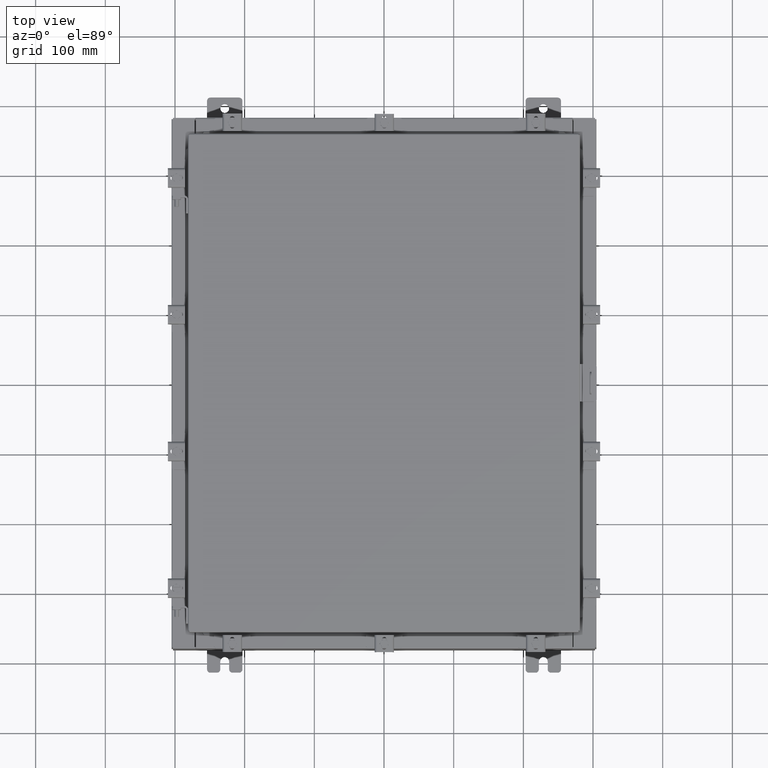
[diagram: clean part render]
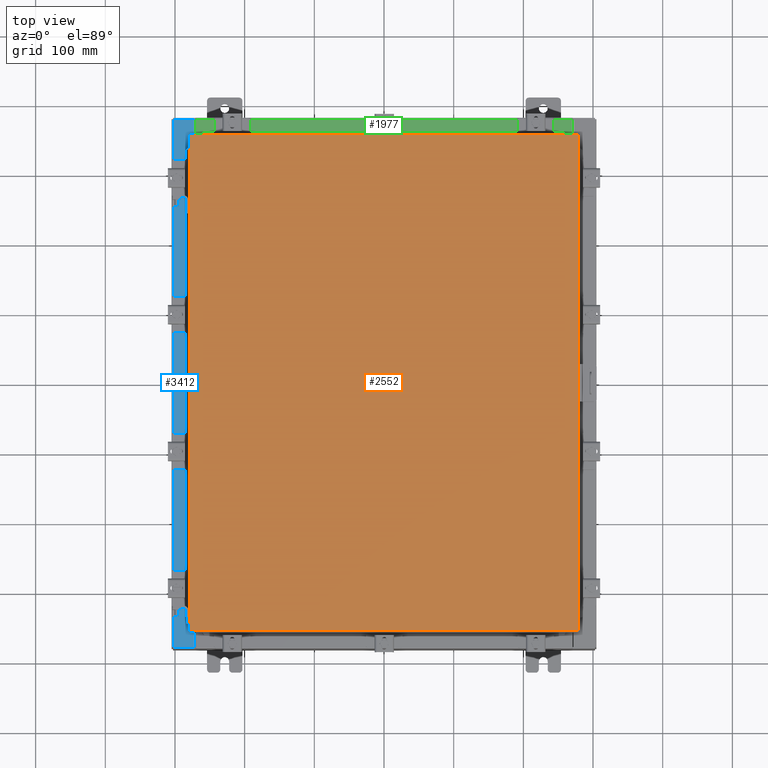
[diagram: same view with three faces highlighted in distinct colors, each labeled with its STEP entity id]
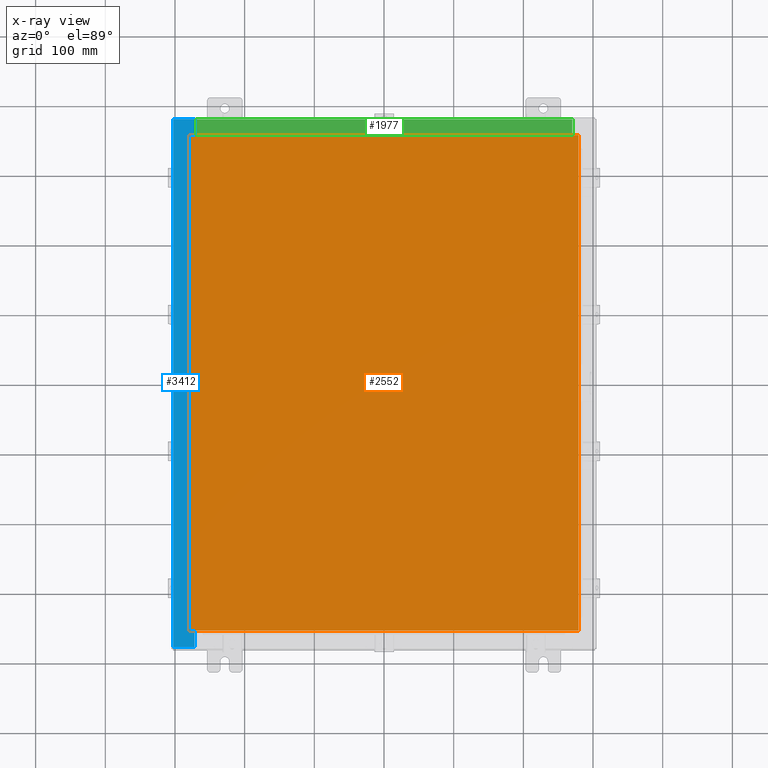
[diagram: x-ray of the same camera — body ghosted, the three highlighted faces saturated]
A machine part, top view with three faces highlighted in distinct colors.
The next image is the same camera in x-ray (body ghosted, the three faces saturated) — at least one of them is partly hidden behind the body in this view.
Their STEP definitions:

[orange] entity #2552 — the highlighted planar face has unit normal (0, 0, -1).
#576 = EDGE_CURVE ( 'NONE', #13573, #22359, #11589, .T. ) ;
#1017 = CARTESIAN_POINT ( 'NONE',  ( -10.99030000000000000, 14.00630000000000100, -2.048885995248197400E-016 ) ) ;
#1202 = ORIENTED_EDGE ( 'NONE', *, *, #6869, .T. ) ;
#2110 = VECTOR ( 'NONE', #15304, 39.37007874015748100 ) ;
#2126 = ORIENTED_EDGE ( 'NONE', *, *, #576, .T. ) ;
#2151 = CARTESIAN_POINT ( 'NONE',  ( -10.99029999999999600, -14.00629999999999800, -2.219626494852214000E-016 ) ) ;
#2207 = AXIS2_PLACEMENT_3D ( 'NONE', #19482, #23092, #12356 ) ;
#2552 = ADVANCED_FACE ( 'NONE', ( #19470 ), #12295, .F. ) ;
#3680 = CARTESIAN_POINT ( 'NONE',  ( 10.99030000000000000, -14.00629999999999800, -2.048885995248197400E-016 ) ) ;
#3942 = DIRECTION ( 'NONE',  ( 1.000000000000000000, -0.0000000000000000000, -0.0000000000000000000 ) ) ;
#4353 = CARTESIAN_POINT ( 'NONE',  ( -10.99029999999999800, -14.00629999999999800, -2.048885995248197400E-016 ) ) ;
#5461 = DIRECTION ( 'NONE',  ( 0.0000000000000000000, 1.000000000000000000, 0.0000000000000000000 ) ) ;
#5851 = VERTEX_POINT ( 'NONE', #18045 ) ;
#6288 = CARTESIAN_POINT ( 'NONE',  ( 10.99030000000000000, 14.00629999999999800, -2.048885995248197400E-016 ) ) ;
#6869 = EDGE_CURVE ( 'NONE', #22359, #5851, #8868, .T. ) ;
#8314 = VECTOR ( 'NONE', #3942, 39.37007874015748100 ) ;
#8868 = LINE ( 'NONE', #2151, #8314 ) ;
#8894 = LINE ( 'NONE', #6288, #11967 ) ;
#9820 = EDGE_LOOP ( 'NONE', ( #1202, #13377, #19326, #2126 ) ) ;
#11589 = LINE ( 'NONE', #1017, #2110 ) ;
#11967 = VECTOR ( 'NONE', #16988, 39.37007874015748100 ) ;
#12295 = PLANE ( 'NONE',  #2207 ) ;
#12343 = VECTOR ( 'NONE', #5461, 39.37007874015748100 ) ;
#12356 = DIRECTION ( 'NONE',  ( -1.000000000000000000, 0.0000000000000000000, -0.0000000000000000000 ) ) ;
#12913 = LINE ( 'NONE', #3680, #12343 ) ;
#13377 = ORIENTED_EDGE ( 'NONE', *, *, #20481, .T. ) ;
#13573 = VERTEX_POINT ( 'NONE', #19896 ) ;
#14234 = VERTEX_POINT ( 'NONE', #21594 ) ;
#14759 = EDGE_CURVE ( 'NONE', #14234, #13573, #8894, .T. ) ;
#15304 = DIRECTION ( 'NONE',  ( 0.0000000000000000000, -1.000000000000000000, 0.0000000000000000000 ) ) ;
#16988 = DIRECTION ( 'NONE',  ( -1.000000000000000000, -0.0000000000000000000, -0.0000000000000000000 ) ) ;
#18045 = CARTESIAN_POINT ( 'NONE',  ( 10.99030000000000000, -14.00629999999999800, -2.048885995248197400E-016 ) ) ;
#19326 = ORIENTED_EDGE ( 'NONE', *, *, #14759, .T. ) ;
#19470 = FACE_OUTER_BOUND ( 'NONE', #9820, .T. ) ;
#19482 = CARTESIAN_POINT ( 'NONE',  ( 0.0000000000000000000, 0.0000000000000000000, 0.0000000000000000000 ) ) ;
#19896 = CARTESIAN_POINT ( 'NONE',  ( -10.99030000000000000, 14.00630000000000100, -2.048885995248197400E-016 ) ) ;
#20481 = EDGE_CURVE ( 'NONE', #5851, #14234, #12913, .T. ) ;
#21594 = CARTESIAN_POINT ( 'NONE',  ( 10.99030000000000000, 14.00629999999999800, -2.048885995248197400E-016 ) ) ;
#22359 = VERTEX_POINT ( 'NONE', #4353 ) ;
#23092 = DIRECTION ( 'NONE',  ( 0.0000000000000000000, 0.0000000000000000000, -1.000000000000000000 ) ) ;

[blue] entity #3412 — the highlighted planar face has unit normal (0, 0, -1).
#262 = ORIENTED_EDGE ( 'NONE', *, *, #11784, .F. ) ;
#887 = EDGE_CURVE ( 'NONE', #2629, #20424, #15483, .T. ) ;
#925 = CARTESIAN_POINT ( 'NONE',  ( -10.69970000000002500, 14.92530000000000000, 5.925300000000008000 ) ) ;
#1241 = VECTOR ( 'NONE', #13762, 39.37007874015748100 ) ;
#1353 = CARTESIAN_POINT ( 'NONE',  ( -10.75005000000002500, -13.61242500000000000, 5.925300000000009800 ) ) ;
#1665 = ORIENTED_EDGE ( 'NONE', *, *, #9773, .F. ) ;
#2022 = DIRECTION ( 'NONE',  ( -1.000000000000000000, 0.0000000000000000000, -7.132762385546384700E-015 ) ) ;
#2139 = EDGE_CURVE ( 'NONE', #9069, #7188, #22029, .T. ) ;
#2480 = CARTESIAN_POINT ( 'NONE',  ( -11.91230000000002500, 14.92530000000000000, 5.925299999999999100 ) ) ;
#2629 = VERTEX_POINT ( 'NONE', #10813 ) ;
#2718 = CARTESIAN_POINT ( 'NONE',  ( -10.71270000000002700, -13.59375000000000000, 5.925300000000009800 ) ) ;
#3135 = DIRECTION ( 'NONE',  ( 1.000000000000000000, 0.0000000000000000000, 0.0000000000000000000 ) ) ;
#3412 = ADVANCED_FACE ( 'NONE', ( #9651 ), #17786, .F. ) ;
#3653 = VECTOR ( 'NONE', #6321, 39.37007874015748100 ) ;
#3772 = CARTESIAN_POINT ( 'NONE',  ( -10.69970000000002500, -2.667765658083309700E-030, 5.925300000000008000 ) ) ;
#3835 = VECTOR ( 'NONE', #7851, 39.37007874015748100 ) ;
#3988 = LINE ( 'NONE', #13787, #17668 ) ;
#4043 = CARTESIAN_POINT ( 'NONE',  ( -10.75005000000002500, 13.59374999999999800, 5.925300000000008000 ) ) ;
#4134 = CARTESIAN_POINT ( 'NONE',  ( -10.75005000000002500, 13.61242499999999600, 5.925300000000009800 ) ) ;
#4465 = AXIS2_PLACEMENT_3D ( 'NONE', #5305, #12707, #2022 ) ;
#4528 = DIRECTION ( 'NONE',  ( -1.000000000000000000, 0.0000000000000000000, 2.170286390200049500E-014 ) ) ;
#4772 = EDGE_CURVE ( 'NONE', #13366, #9752, #5690, .T. ) ;
#4815 = CIRCLE ( 'NONE', #7685, 0.01867499999999949400 ) ;
#4922 = EDGE_CURVE ( 'NONE', #13918, #21715, #21329, .T. ) ;
#5100 = VECTOR ( 'NONE', #4528, 39.37007874015748100 ) ;
#5305 = CARTESIAN_POINT ( 'NONE',  ( -4.252457061909017700E-014, 0.0000000000000000000, 5.925300000000084400 ) ) ;
#5349 = CARTESIAN_POINT ( 'NONE',  ( -4.252457061909017700E-014, -14.92530000000000000, 5.925300000000084400 ) ) ;
#5515 = DIRECTION ( 'NONE',  ( -2.493308838643432600E-031, 1.000000000000000000, -1.778417949982621800E-045 ) ) ;
#5556 = DIRECTION ( 'NONE',  ( -2.493308838643432600E-031, 1.000000000000000000, -1.778417949982621800E-045 ) ) ;
#5682 = ORIENTED_EDGE ( 'NONE', *, *, #20628, .F. ) ;
#5690 = LINE ( 'NONE', #9013, #19373 ) ;
#5732 = ORIENTED_EDGE ( 'NONE', *, *, #6242, .F. ) ;
#5906 = DIRECTION ( 'NONE',  ( 1.000000000000000000, 0.0000000000000000000, 0.0000000000000000000 ) ) ;
#6058 = CARTESIAN_POINT ( 'NONE',  ( -10.71270000000002700, 13.59375000000000000, 5.925300000000009800 ) ) ;
#6226 = VERTEX_POINT ( 'NONE', #4043 ) ;
#6242 = EDGE_CURVE ( 'NONE', #6226, #9069, #15003, .T. ) ;
#6321 = DIRECTION ( 'NONE',  ( -1.000000000000000000, 0.0000000000000000000, 0.0000000000000000000 ) ) ;
#6325 = EDGE_CURVE ( 'NONE', #13918, #7968, #18072, .T. ) ;
#6522 = CARTESIAN_POINT ( 'NONE',  ( -11.91230000000002500, -14.92530000000000000, 5.925299999999999100 ) ) ;
#6672 = VECTOR ( 'NONE', #5556, 39.37007874015748100 ) ;
#7188 = VERTEX_POINT ( 'NONE', #2718 ) ;
#7685 = AXIS2_PLACEMENT_3D ( 'NONE', #4134, #16612, #5906 ) ;
#7851 = DIRECTION ( 'NONE',  ( -0.0000000000000000000, 1.000000000000000000, -0.0000000000000000000 ) ) ;
#7968 = VERTEX_POINT ( 'NONE', #17500 ) ;
#8320 = VECTOR ( 'NONE', #18481, 39.37007874015748100 ) ;
#8484 = DIRECTION ( 'NONE',  ( 1.000000000000000000, 0.0000000000000000000, -2.170286390200049500E-014 ) ) ;
#8734 = ORIENTED_EDGE ( 'NONE', *, *, #9823, .F. ) ;
#8995 = ORIENTED_EDGE ( 'NONE', *, *, #2139, .F. ) ;
#9013 = CARTESIAN_POINT ( 'NONE',  ( -10.69970000000002500, -2.667765658083309700E-030, 5.925300000000008000 ) ) ;
#9069 = VERTEX_POINT ( 'NONE', #15152 ) ;
#9264 = EDGE_LOOP ( 'NONE', ( #1665, #21284, #20012, #22379, #18694, #15815, #8734, #13584, #262, #8995, #5732, #5682 ) ) ;
#9420 = DIRECTION ( 'NONE',  ( 1.000000000000000000, 0.0000000000000000000, 0.0000000000000000000 ) ) ;
#9651 = FACE_OUTER_BOUND ( 'NONE', #9264, .T. ) ;
#9752 = VERTEX_POINT ( 'NONE', #925 ) ;
#9773 = EDGE_CURVE ( 'NONE', #13366, #14978, #14588, .T. ) ;
#9823 = EDGE_CURVE ( 'NONE', #20424, #15262, #3988, .T. ) ;
#10813 = CARTESIAN_POINT ( 'NONE',  ( -10.75005000000002500, -13.59375000000000000, 5.925300000000008000 ) ) ;
#11784 = EDGE_CURVE ( 'NONE', #7188, #2629, #14244, .T. ) ;
#11826 = VECTOR ( 'NONE', #17848, 39.37007874015748100 ) ;
#12707 = DIRECTION ( 'NONE',  ( 7.132762385546384700E-015, 0.0000000000000000000, -1.000000000000000000 ) ) ;
#13366 = VERTEX_POINT ( 'NONE', #17624 ) ;
#13584 = ORIENTED_EDGE ( 'NONE', *, *, #887, .F. ) ;
#13762 = DIRECTION ( 'NONE',  ( -1.000000000000000000, -3.263857780453126100E-032, -7.132762385546384700E-015 ) ) ;
#13787 = CARTESIAN_POINT ( 'NONE',  ( -10.75005000000002500, -13.63109999999999800, 5.925300000000009800 ) ) ;
#13812 = DIRECTION ( 'NONE',  ( -7.132762385546384700E-015, -0.0000000000000000000, 1.000000000000000000 ) ) ;
#13843 = CARTESIAN_POINT ( 'NONE',  ( -4.252457061909017700E-014, 14.92530000000000000, 5.925300000000084400 ) ) ;
#13918 = VERTEX_POINT ( 'NONE', #6522 ) ;
#14196 = CARTESIAN_POINT ( 'NONE',  ( -10.75005000000002500, -13.63109999999999800, 5.925300000000008000 ) ) ;
#14244 = LINE ( 'NONE', #18808, #3653 ) ;
#14345 = LINE ( 'NONE', #13843, #1241 ) ;
#14588 = LINE ( 'NONE', #17002, #5100 ) ;
#14978 = VERTEX_POINT ( 'NONE', #19392 ) ;
#15003 = LINE ( 'NONE', #16523, #19193 ) ;
#15152 = CARTESIAN_POINT ( 'NONE',  ( -10.71270000000002700, 13.59374999999999800, 5.925300000000009800 ) ) ;
#15262 = VERTEX_POINT ( 'NONE', #21906 ) ;
#15483 = CIRCLE ( 'NONE', #18033, 0.01867499999999949400 ) ;
#15677 = EDGE_CURVE ( 'NONE', #21715, #15262, #20924, .T. ) ;
#15815 = ORIENTED_EDGE ( 'NONE', *, *, #15677, .T. ) ;
#16523 = CARTESIAN_POINT ( 'NONE',  ( -10.75005000000002500, 13.59374999999999800, 5.925300000000009800 ) ) ;
#16612 = DIRECTION ( 'NONE',  ( -7.132762385546384700E-015, -0.0000000000000000000, 1.000000000000000000 ) ) ;
#17002 = CARTESIAN_POINT ( 'NONE',  ( -10.69970000000002500, 13.63109999999999600, 5.925300000000008900 ) ) ;
#17500 = CARTESIAN_POINT ( 'NONE',  ( -11.91230000000002500, 14.92530000000000000, 5.925299999999999100 ) ) ;
#17624 = CARTESIAN_POINT ( 'NONE',  ( -10.69970000000002500, 13.63109999999999600, 5.925300000000008000 ) ) ;
#17668 = VECTOR ( 'NONE', #8484, 39.37007874015748100 ) ;
#17786 = PLANE ( 'NONE',  #4465 ) ;
#17848 = DIRECTION ( 'NONE',  ( 1.000000000000000000, 0.0000000000000000000, 7.132762385546384700E-015 ) ) ;
#18033 = AXIS2_PLACEMENT_3D ( 'NONE', #1353, #13812, #3135 ) ;
#18072 = LINE ( 'NONE', #2480, #3835 ) ;
#18481 = DIRECTION ( 'NONE',  ( -0.0000000000000000000, -1.000000000000000000, -0.0000000000000000000 ) ) ;
#18694 = ORIENTED_EDGE ( 'NONE', *, *, #4922, .T. ) ;
#18808 = CARTESIAN_POINT ( 'NONE',  ( -10.71270000000002700, -13.59375000000000000, 5.925300000000009800 ) ) ;
#19193 = VECTOR ( 'NONE', #9420, 39.37007874015748100 ) ;
#19373 = VECTOR ( 'NONE', #5515, 39.37007874015748100 ) ;
#19392 = CARTESIAN_POINT ( 'NONE',  ( -10.75005000000002500, 13.63109999999999600, 5.925300000000008000 ) ) ;
#19501 = EDGE_CURVE ( 'NONE', #9752, #7968, #14345, .T. ) ;
#20012 = ORIENTED_EDGE ( 'NONE', *, *, #19501, .T. ) ;
#20424 = VERTEX_POINT ( 'NONE', #14196 ) ;
#20628 = EDGE_CURVE ( 'NONE', #14978, #6226, #4815, .T. ) ;
#20924 = LINE ( 'NONE', #3772, #6672 ) ;
#21284 = ORIENTED_EDGE ( 'NONE', *, *, #4772, .T. ) ;
#21329 = LINE ( 'NONE', #5349, #11826 ) ;
#21333 = CARTESIAN_POINT ( 'NONE',  ( -10.69970000000002500, -14.92530000000000000, 5.925300000000008000 ) ) ;
#21715 = VERTEX_POINT ( 'NONE', #21333 ) ;
#21906 = CARTESIAN_POINT ( 'NONE',  ( -10.69970000000002500, -13.63110000000000200, 5.925300000000008000 ) ) ;
#22029 = LINE ( 'NONE', #6058, #8320 ) ;
#22379 = ORIENTED_EDGE ( 'NONE', *, *, #6325, .F. ) ;

[green] entity #1977 — the highlighted planar face has unit normal (0, 0, 1).
#885 = LINE ( 'NONE', #18870, #5618 ) ;
#1977 = ADVANCED_FACE ( 'NONE', ( #20629 ), #12787, .T. ) ;
#2104 = CARTESIAN_POINT ( 'NONE',  ( 0.0000000000000000000, 1.069354855923099900E-014, 3.000000000000000900 ) ) ;
#2247 = ORIENTED_EDGE ( 'NONE', *, *, #11989, .F. ) ;
#2808 = CARTESIAN_POINT ( 'NONE',  ( 10.63720000000000400, -0.08769999999999965300, 3.000000000000000900 ) ) ;
#2835 = EDGE_CURVE ( 'NONE', #10883, #11535, #11915, .T. ) ;
#3920 = VECTOR ( 'NONE', #21153, 39.37007874015748100 ) ;
#4188 = CARTESIAN_POINT ( 'NONE',  ( -2.252313287748515100E-018, -0.08770000000000000000, 3.000000000000001300 ) ) ;
#5054 = DIRECTION ( 'NONE',  ( -0.0000000000000000000, -1.000000000000000000, 3.566381192773190000E-015 ) ) ;
#5618 = VECTOR ( 'NONE', #6379, 39.37007874015748100 ) ;
#5678 = DIRECTION ( 'NONE',  ( 0.0000000000000000000, -1.000000000000000000, 3.566381192773190000E-015 ) ) ;
#6379 = DIRECTION ( 'NONE',  ( -0.0000000000000000000, 1.000000000000000000, -3.566381192773190000E-015 ) ) ;
#6404 = ORIENTED_EDGE ( 'NONE', *, *, #21262, .T. ) ;
#7105 = CARTESIAN_POINT ( 'NONE',  ( -10.63720000000000200, -1.287299999999999200, 3.000000000000005300 ) ) ;
#7799 = ORIENTED_EDGE ( 'NONE', *, *, #2835, .F. ) ;
#8652 = LINE ( 'NONE', #19343, #3920 ) ;
#9373 = VERTEX_POINT ( 'NONE', #7105 ) ;
#9592 = ORIENTED_EDGE ( 'NONE', *, *, #10892, .F. ) ;
#10883 = VERTEX_POINT ( 'NONE', #2808 ) ;
#10892 = EDGE_CURVE ( 'NONE', #9373, #13594, #885, .T. ) ;
#11081 = CARTESIAN_POINT ( 'NONE',  ( 10.63720000000000200, -1.287299999999999900, 3.000000000000005300 ) ) ;
#11451 = AXIS2_PLACEMENT_3D ( 'NONE', #2104, #16375, #5678 ) ;
#11535 = VERTEX_POINT ( 'NONE', #11081 ) ;
#11915 = LINE ( 'NONE', #12147, #19748 ) ;
#11989 = EDGE_CURVE ( 'NONE', #11535, #9373, #8652, .T. ) ;
#12147 = CARTESIAN_POINT ( 'NONE',  ( 10.63720000000000200, -1.300299999999999800, 3.000000000000005300 ) ) ;
#12787 = PLANE ( 'NONE',  #11451 ) ;
#13594 = VERTEX_POINT ( 'NONE', #18097 ) ;
#13824 = VECTOR ( 'NONE', #16661, 39.37007874015748100 ) ;
#14934 = EDGE_LOOP ( 'NONE', ( #9592, #2247, #7799, #6404 ) ) ;
#16375 = DIRECTION ( 'NONE',  ( 0.0000000000000000000, 3.566381192773190000E-015, 1.000000000000000000 ) ) ;
#16661 = DIRECTION ( 'NONE',  ( -1.000000000000000000, 2.568202152506545800E-017, -9.159187855938968600E-032 ) ) ;
#18097 = CARTESIAN_POINT ( 'NONE',  ( -10.63720000000000200, -0.08770000000000000000, 3.000000000000000900 ) ) ;
#18589 = LINE ( 'NONE', #4188, #13824 ) ;
#18870 = CARTESIAN_POINT ( 'NONE',  ( -10.63720000000000200, -0.07469999999999973900, 3.000000000000000900 ) ) ;
#19343 = CARTESIAN_POINT ( 'NONE',  ( 10.63720000000000400, -1.287299999999999900, 3.000000000000005300 ) ) ;
#19748 = VECTOR ( 'NONE', #5054, 39.37007874015748100 ) ;
#20629 = FACE_OUTER_BOUND ( 'NONE', #14934, .T. ) ;
#21153 = DIRECTION ( 'NONE',  ( -1.000000000000000000, 0.0000000000000000000, 0.0000000000000000000 ) ) ;
#21262 = EDGE_CURVE ( 'NONE', #10883, #13594, #18589, .T. ) ;